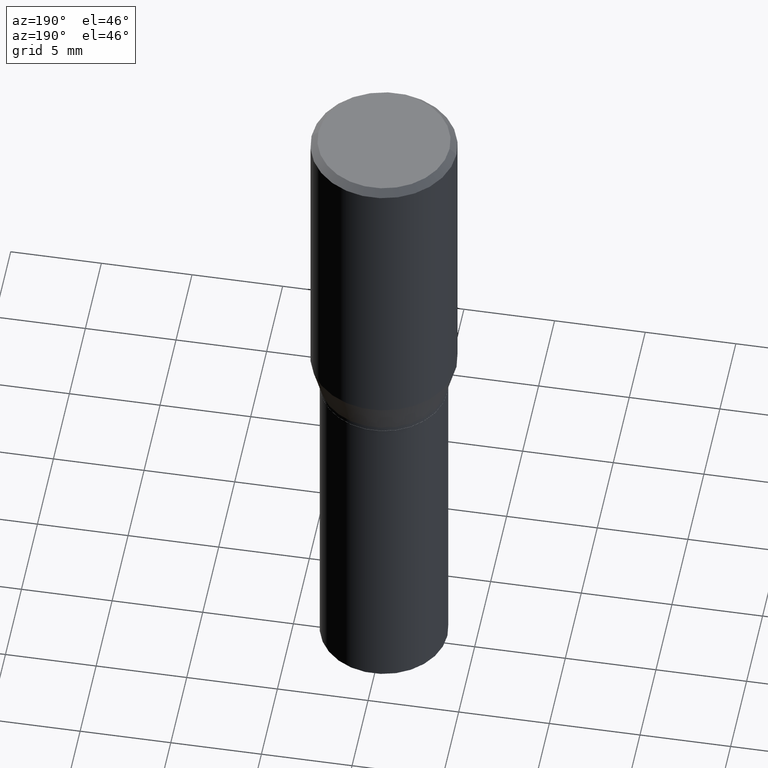
[diagram: clean part render]
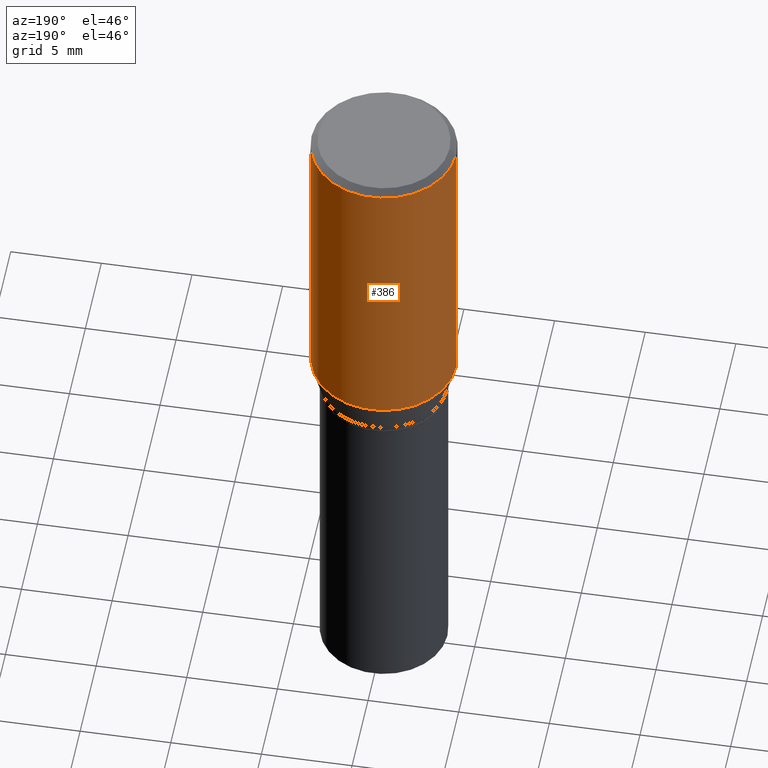
[diagram: same view with one face highlighted and labeled with its STEP entity id]
A machine part, auxiliary view. The second image highlights one B-rep face of the part: STEP entity #386.
In plain terms, the highlighted cylindrical surface (partial cylindrical patch) has radius 4.0005 mm, axis along (-0, 0, 1).
Its self-contained STEP definition (entity closure, byte-faithful):
#4 = VERTEX_POINT ( 'NONE', #419 ) ;
#16 = DIRECTION ( 'NONE',  ( 1.000000000000000000, -6.982962677686267499E-15, 0.000000000000000000 ) ) ;
#21 = EDGE_LOOP ( 'NONE', ( #191, #402, #170, #466 ) ) ;
#42 = VERTEX_POINT ( 'NONE', #435 ) ;
#45 = EDGE_CURVE ( 'NONE', #4, #195, #256, .T. ) ;
#47 = AXIS2_PLACEMENT_3D ( 'NONE', #263, #341, #420 ) ;
#63 = EDGE_CURVE ( 'NONE', #100, #42, #442, .T. ) ;
#76 = DIRECTION ( 'NONE',  ( -2.445468806185136877E-29, 3.491481338843145188E-15, 1.000000000000000000 ) ) ;
#89 = CYLINDRICAL_SURFACE ( 'NONE', #47, 0.1575000000000000289 ) ;
#100 = VERTEX_POINT ( 'NONE', #178 ) ;
#101 = CARTESIAN_POINT ( 'NONE',  ( 3.668203209277705088E-31, -5.237222008264718399E-17, -0.01499999999999999944 ) ) ;
#105 = CARTESIAN_POINT ( 'NONE',  ( -0.1575000000000000011, -7.407157829009734663E-17, -0.01499999999999999944 ) ) ;
#107 = LINE ( 'NONE', #204, #288 ) ;
#108 = VECTOR ( 'NONE', #142, 39.37007874015748143 ) ;
#118 = FACE_OUTER_BOUND ( 'NONE', #21, .T. ) ;
#142 = DIRECTION ( 'NONE',  ( -2.445468806185136877E-29, 3.491481338843145188E-15, 1.000000000000000000 ) ) ;
#158 = AXIS2_PLACEMENT_3D ( 'NONE', #101, #274, #255 ) ;
#170 = ORIENTED_EDGE ( 'NONE', *, *, #45, .F. ) ;
#176 = EDGE_CURVE ( 'NONE', #42, #195, #360, .T. ) ;
#178 = CARTESIAN_POINT ( 'NONE',  ( 0.1575000000000000289, -3.433797175877450400E-15, -0.6684785990908935771 ) ) ;
#180 = DIRECTION ( 'NONE',  ( -2.445468806185136597E-29, 3.491481338843145583E-15, 1.000000000000000000 ) ) ;
#191 = ORIENTED_EDGE ( 'NONE', *, *, #63, .T. ) ;
#195 = VERTEX_POINT ( 'NONE', #105 ) ;
#204 = CARTESIAN_POINT ( 'NONE',  ( 0.1575000000000000289, -1.099816621735587283E-15, 7.679978421878599434E-30 ) ) ;
#206 = AXIS2_PLACEMENT_3D ( 'NONE', #374, #180, #16 ) ;
#228 = EDGE_CURVE ( 'NONE', #100, #4, #107, .T. ) ;
#255 = DIRECTION ( 'NONE',  ( 1.000000000000000000, -6.982962677686265922E-15, 0.000000000000000000 ) ) ;
#256 = CIRCLE ( 'NONE', #158, 0.1575000000000000011 ) ;
#263 = CARTESIAN_POINT ( 'NONE',  ( 0.000000000000000000, 0.000000000000000000, 0.000000000000000000 ) ) ;
#274 = DIRECTION ( 'NONE',  ( -2.445468806185136597E-29, 3.491481338843145583E-15, 1.000000000000000000 ) ) ;
#288 = VECTOR ( 'NONE', #76, 39.37007874015748143 ) ;
#341 = DIRECTION ( 'NONE',  ( -2.445468806185136597E-29, 3.491481338843145583E-15, 1.000000000000000000 ) ) ;
#360 = LINE ( 'NONE', #365, #108 ) ;
#365 = CARTESIAN_POINT ( 'NONE',  ( -0.1575000000000000289, 1.119104808822157998E-15, -7.747322767151478386E-30 ) ) ;
#374 = CARTESIAN_POINT ( 'NONE',  ( 1.634743561679119835E-29, -2.333980554141863708E-15, -0.6684785990908935771 ) ) ;
#386 = ADVANCED_FACE ( 'NONE', ( #118 ), #89, .T. ) ;
#402 = ORIENTED_EDGE ( 'NONE', *, *, #176, .T. ) ;
#419 = CARTESIAN_POINT ( 'NONE',  ( 0.1575000000000000011, -1.152188841818234165E-15, -0.01499999999999999944 ) ) ;
#420 = DIRECTION ( 'NONE',  ( 1.000000000000000000, -6.982962677686267499E-15, 4.876176775795935232E-29 ) ) ;
#435 = CARTESIAN_POINT ( 'NONE',  ( -0.1575000000000000289, -1.214875745319705316E-15, -0.6684785990908935771 ) ) ;
#442 = CIRCLE ( 'NONE', #206, 0.1575000000000000289 ) ;
#466 = ORIENTED_EDGE ( 'NONE', *, *, #228, .F. ) ;